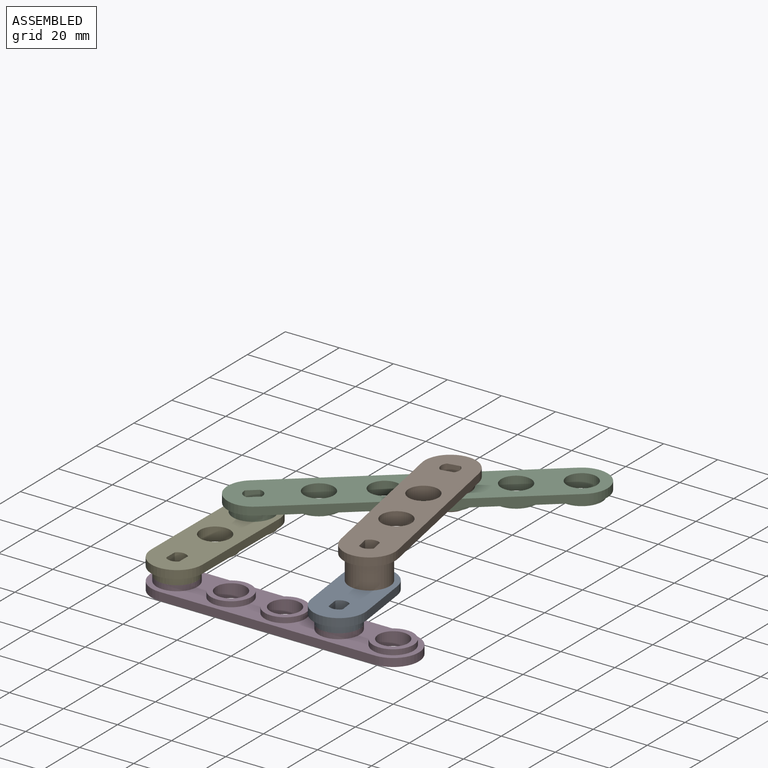
[diagram: assembled view]
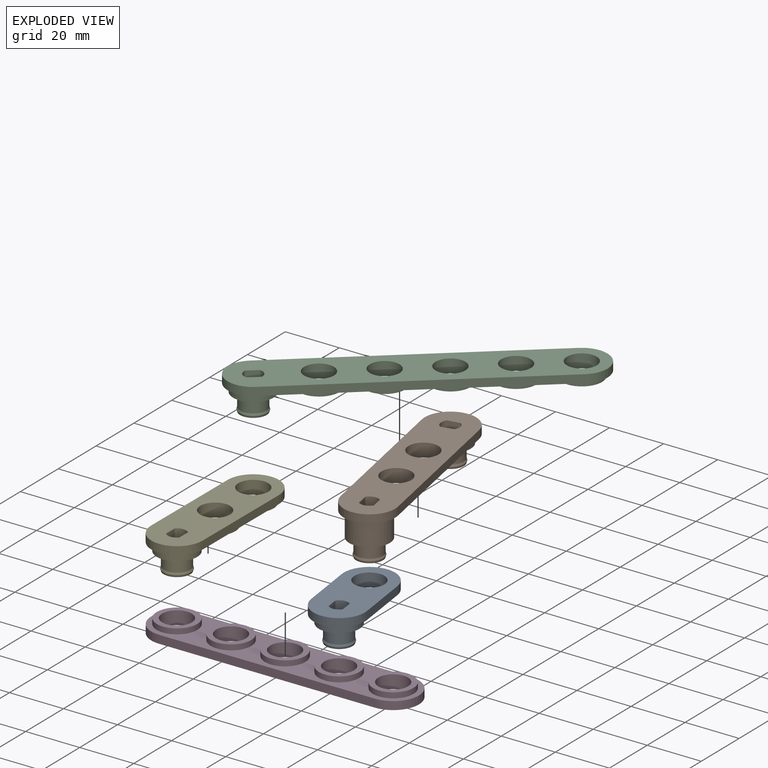
[diagram: exploded view]
GUIDED TOUR — MATED ASSEMBLY WITH SUBASSEMBLIES (Onshape document 5810d374413f1d10aa2dce65, AutoMate assembly 5810d374413f1d10aa2dce65_71eab3be1ad96f7b2e7ce7cf_451532e09a91fd1a0722f54e_default)

This assembly has 6 component occurrences arranged in 5 top-level units: 4 individual components plus 1 subassembly (S0). The tour has two levels: first the top level, where each subassembly is treated as one rigid unit; then each subassembly is toured internally in its own section (nesting deeper than one subassembly level is flattened into its subassembly's section).

Components are labeled P0..P5 across the whole record; subassembly units are labeled S0..S0. A mate is a constraint between two units; its type names the relative motion it leaves free:
  FASTENED — locks the two components together rigidly (no relative motion),
  REVOLUTE — leaves rotation about the listed axis free (a hinge).
Axis/direction vectors are unit vectors and 'through' points are millimeter coordinates, both in the assembly's world frame.

TOP-LEVEL MATES (between units; each subassembly's internal mates are listed in its own section)
  1. REVOLUTE "Revolute 4": P0 <-> S0, axis (0.000, 0.000, 1.000) through (57.34, 19.82, 11.00) mm
  2. REVOLUTE "Revolute 1 (axe moteur)": P3 <-> P4, axis (0.000, 0.000, 1.000) through (0.00, 0.00, 5.00) mm
  3. REVOLUTE "Revolute 5": S0 <-> P2, axis (0.000, 0.000, -1.000) through (46.03, 78.75, 17.00) mm
  4. REVOLUTE "Revolute 2": P4 <-> P2, axis (0.000, 0.000, 1.000) through (0.22, 40.00, 11.00) mm
  5. REVOLUTE "Revolute 3": P3 <-> P0, axis (0.000, 0.000, 1.000) through (60.00, 0.00, 5.00) mm

TOP-LEVEL ASSEMBLY ORDER
  1. P0 — the base component [order heuristic]
  2. S0 [order heuristic]
  3. P3 [order heuristic]
  4. P2 [order heuristic]
  5. P4 [order heuristic]
Order-tag legend:
  [order heuristic] — this assembly is geometrically interlocked (no collision-free removal order exists), so components are listed in mate-graph order; insertion feasibility is not verified.

Of the 6 component occurrences, 1 carries the full construction recipe — the FeatureScript program that regenerates the part's solid from scratch; the rest are supplied as boundary geometry only. Each toured unit is shown spotlighted twice — assembled, then exploded with a leader line back to its socket (green = recipe-attached component, orange = geometry-only, blue = subassembly unit; the rest desaturated gray).
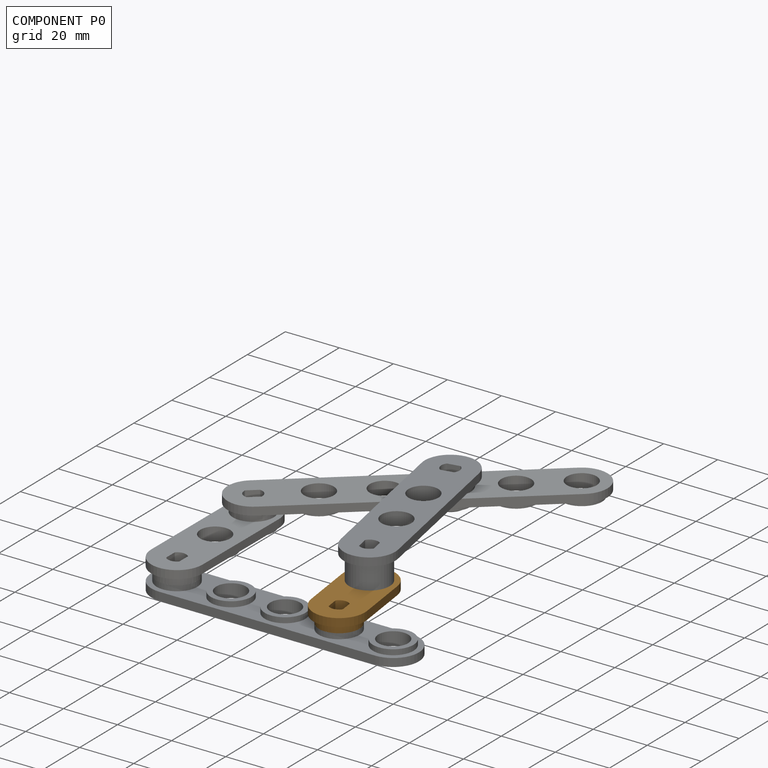
[diagram: component P0 — assembled]
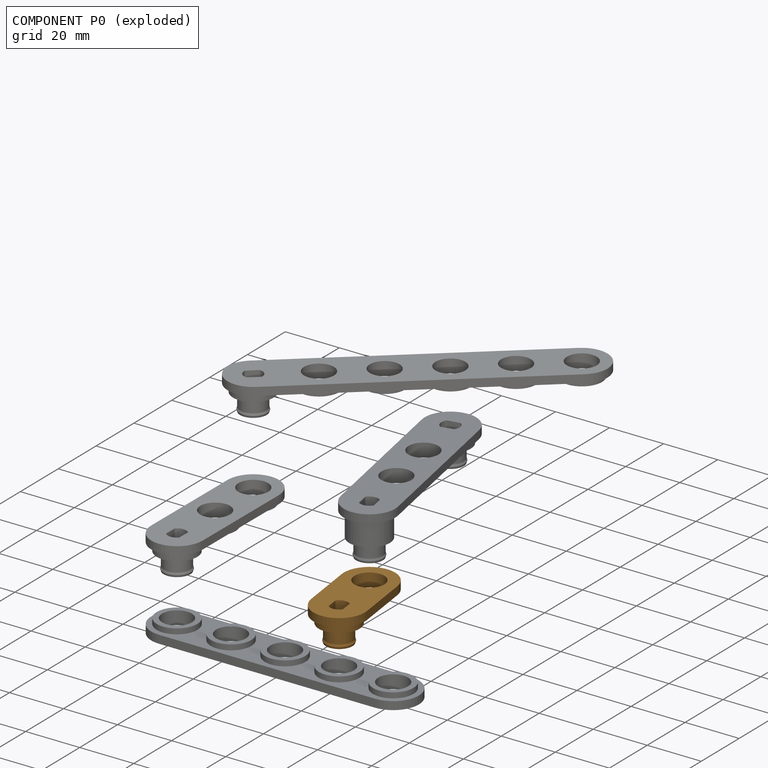
[diagram: component P0 — exploded]
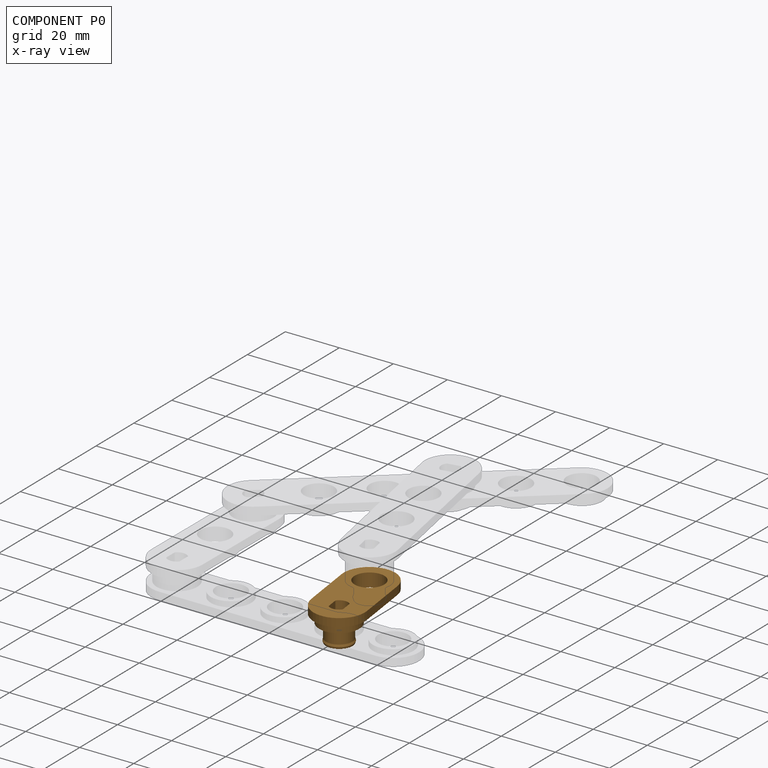
[diagram: component P0 — x-ray view]
COMPONENT P0 — geometry summary (no construction recipe available for this part):
  bounding box: 39.0 x 19.0 x 12.5 mm
  B-rep topology: 1 solid, 19 faces, 82 edges
  volume: 2525 mm^3 (27% of its bounding box)
  symmetry: mirror-symmetric across its y mid-plane
Held by: REVOLUTE mate "Revolute 4" to P1; REVOLUTE mate "Revolute 3" to P3.
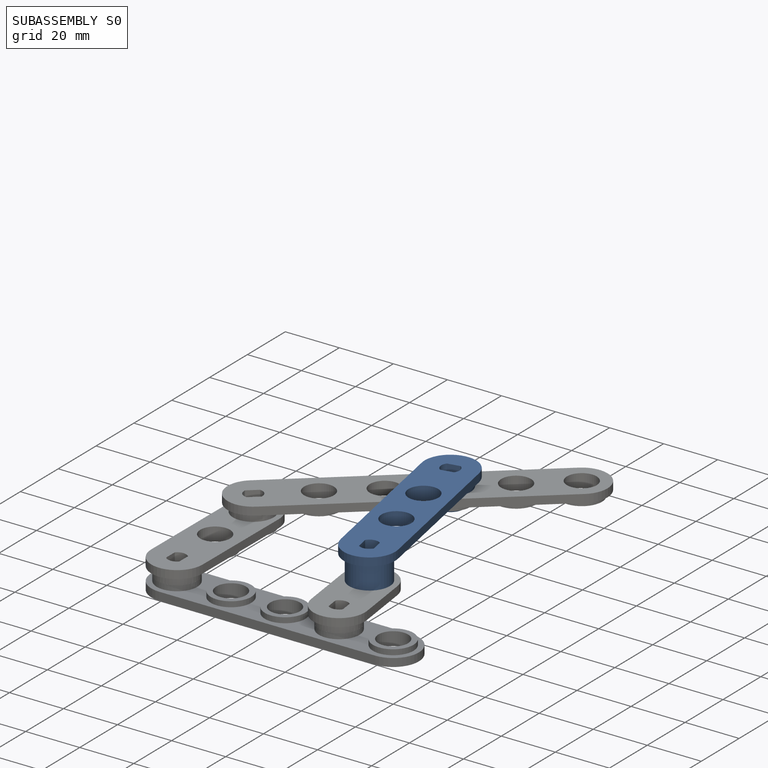
[diagram: subassembly S0 — assembled]
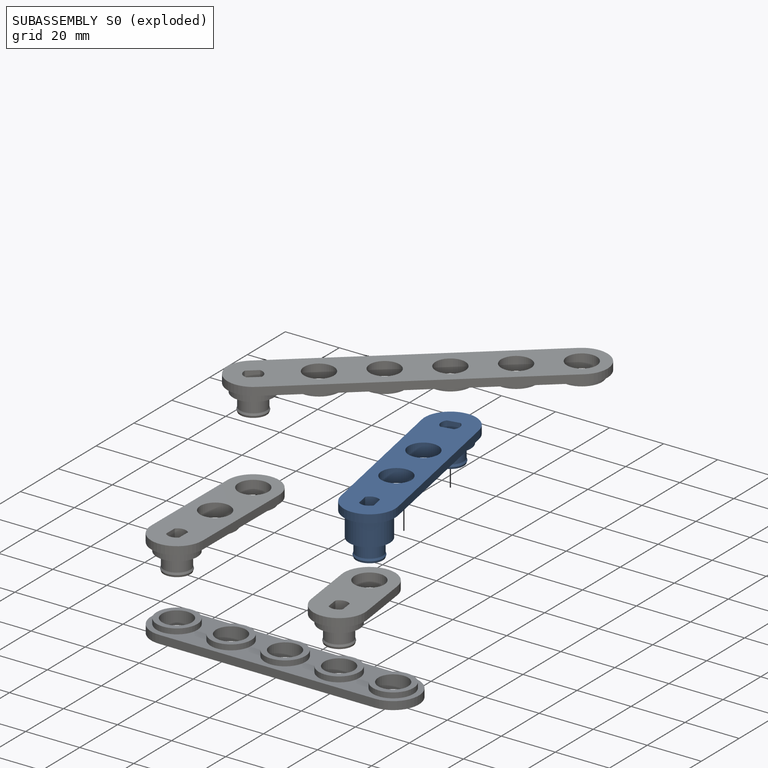
[diagram: subassembly S0 — exploded]
SUBASSEMBLY S0 — 2 components (P1, P5), of which 1 recipe-attached; toured below.
Held by: REVOLUTE mate "Revolute 4" to P0; REVOLUTE mate "Revolute 5" to P2.
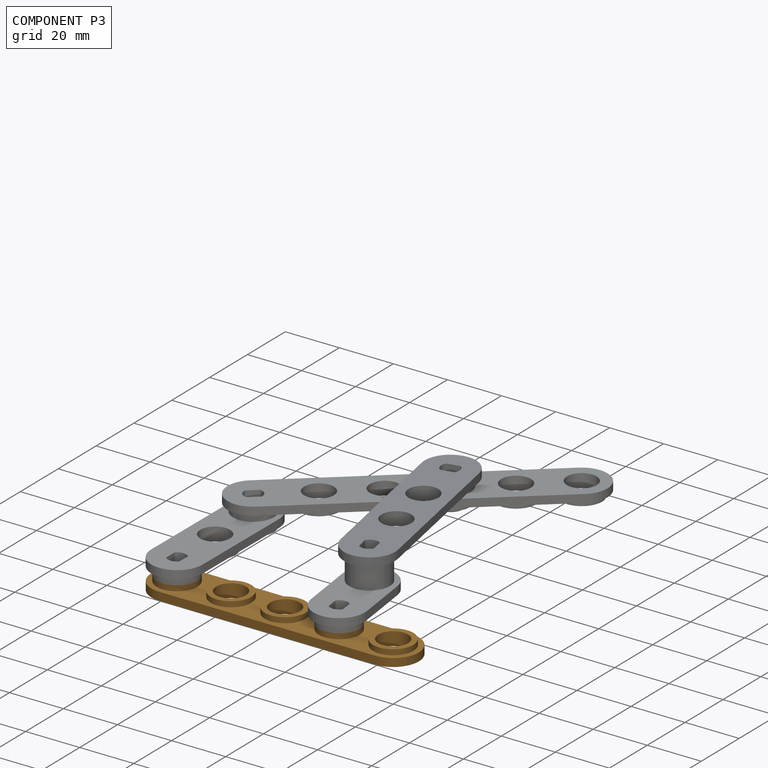
[diagram: component P3 — assembled]
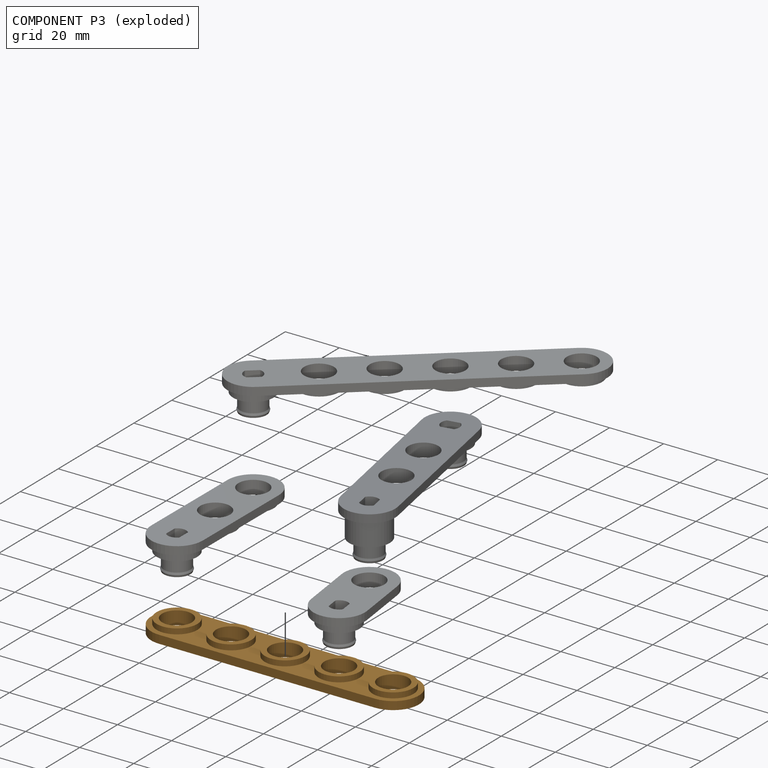
[diagram: component P3 — exploded]
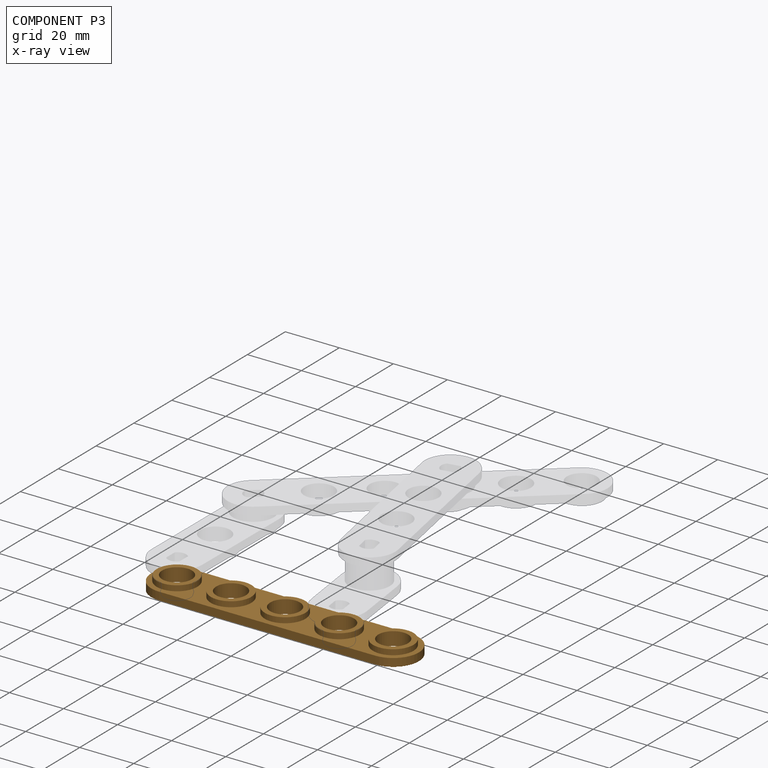
[diagram: component P3 — x-ray view]
COMPONENT P3 — geometry summary (no construction recipe available for this part):
  bounding box: 99.0 x 19.0 x 5.0 mm
  B-rep topology: 1 solid, 21 faces, 84 edges
  volume: 4802 mm^3 (51% of its bounding box)
  symmetry: 2-fold rotationally symmetric about the z axis; mirror-symmetric across its x mid-plane, y mid-plane
Held by: REVOLUTE mate "Revolute 1 (axe moteur)" to P4; REVOLUTE mate "Revolute 3" to P0.
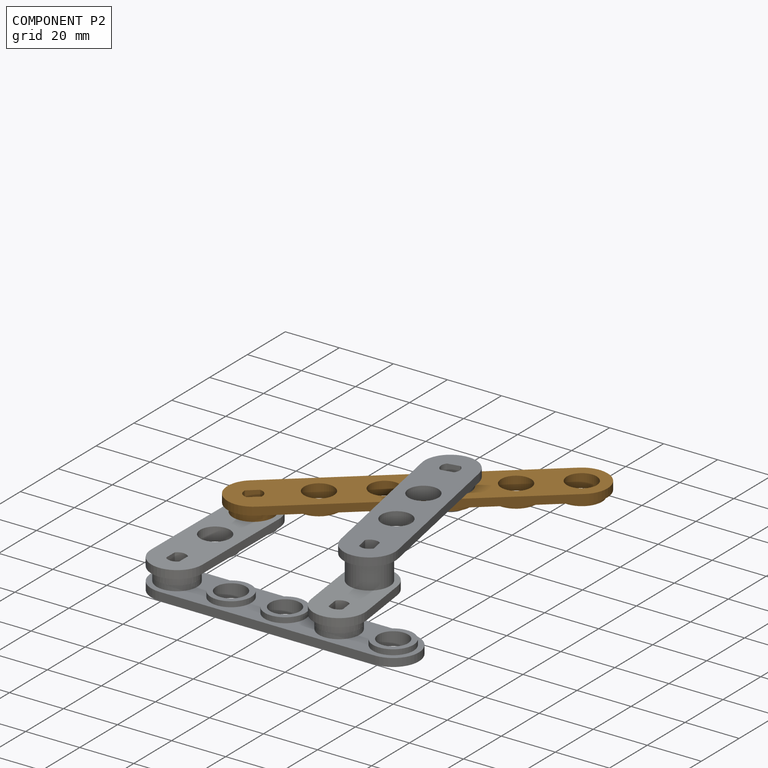
[diagram: component P2 — assembled]
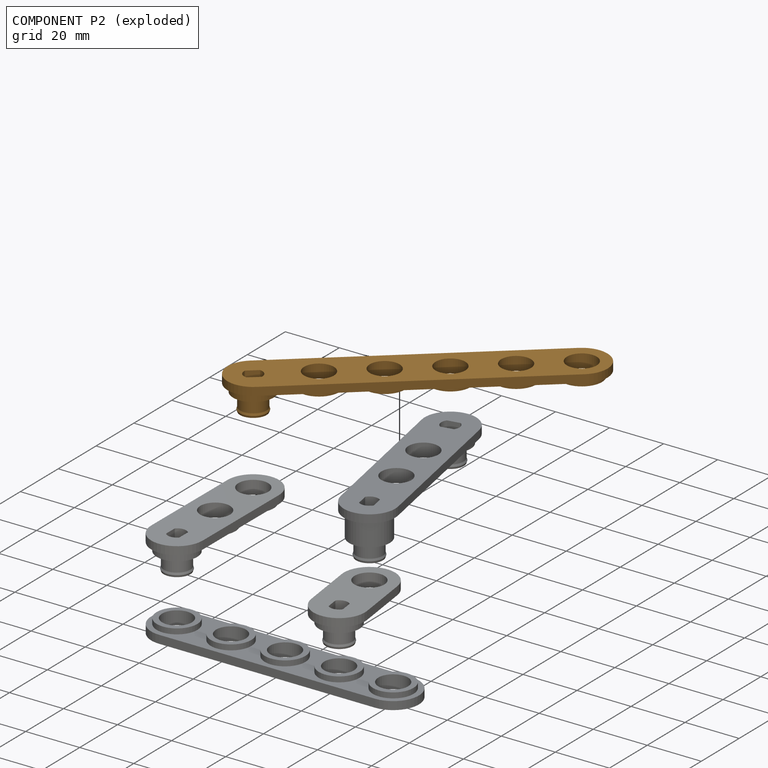
[diagram: component P2 — exploded]
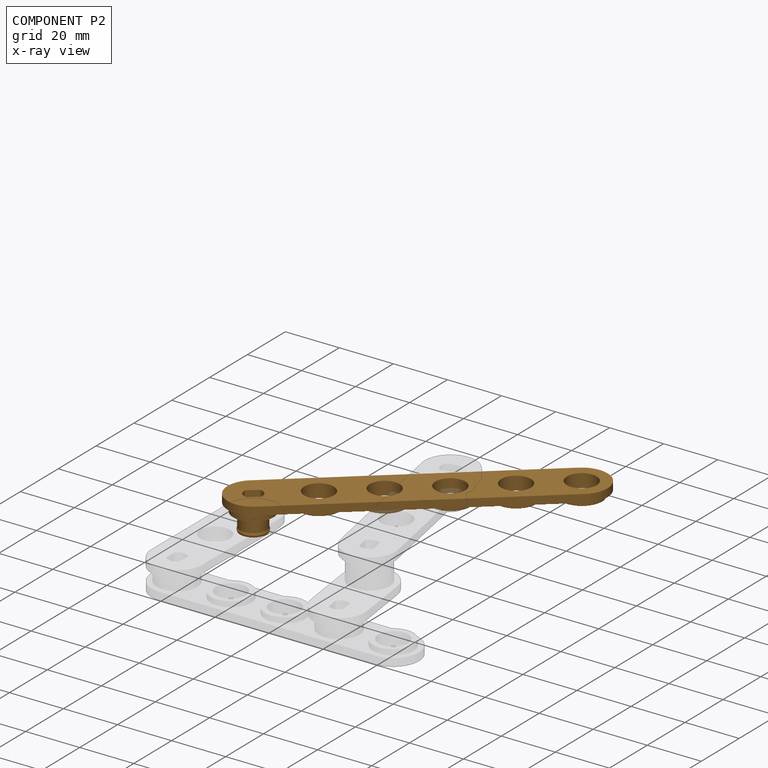
[diagram: component P2 — x-ray view]
COMPONENT P2 — geometry summary (no construction recipe available for this part):
  bounding box: 119.0 x 19.0 x 12.5 mm
  B-rep topology: 1 solid, 31 faces, 130 edges
  volume: 6598 mm^3 (23% of its bounding box)
  symmetry: mirror-symmetric across its y mid-plane
Held by: REVOLUTE mate "Revolute 5" to P1; REVOLUTE mate "Revolute 2" to P4.
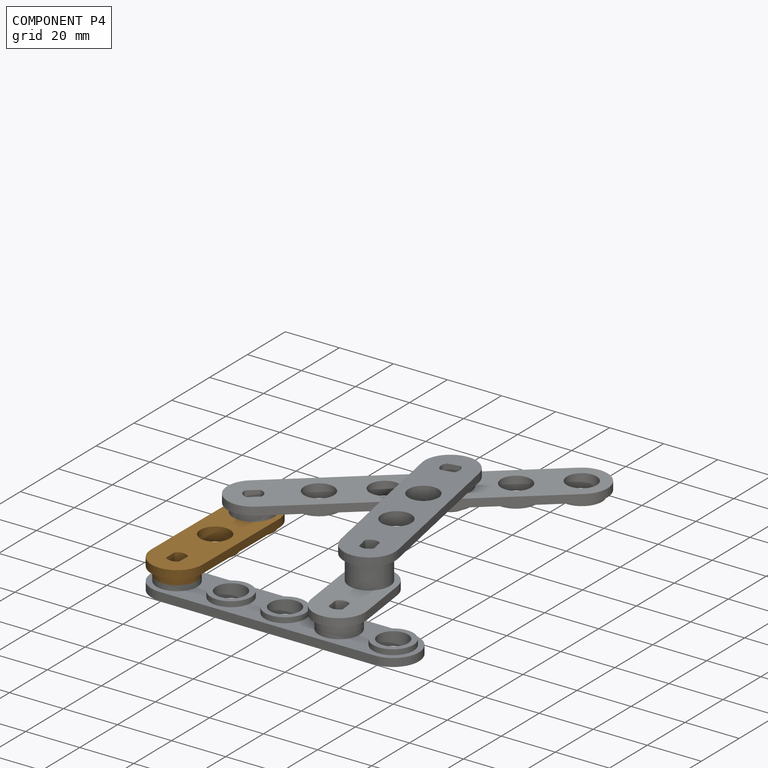
[diagram: component P4 — assembled]
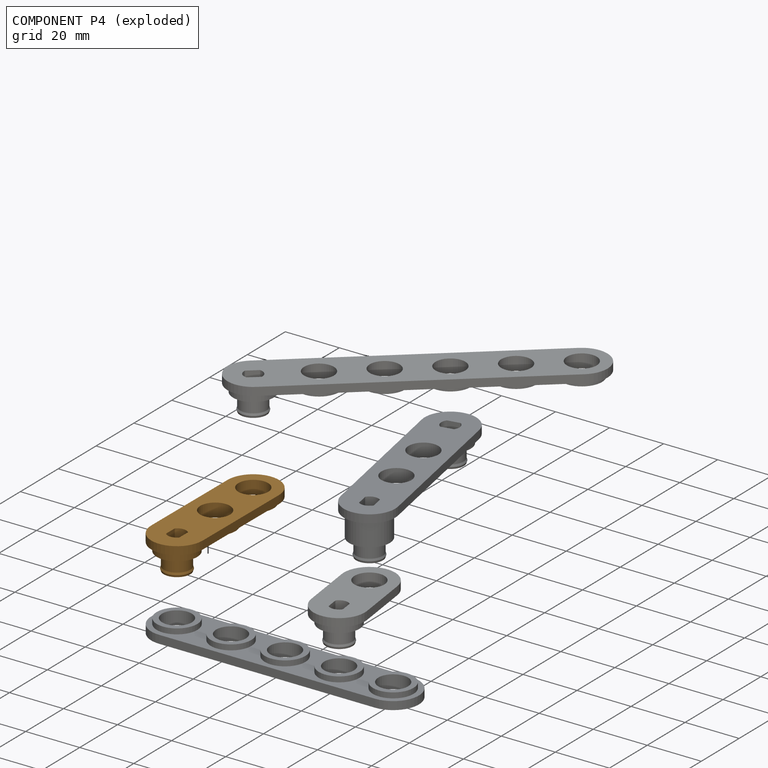
[diagram: component P4 — exploded]
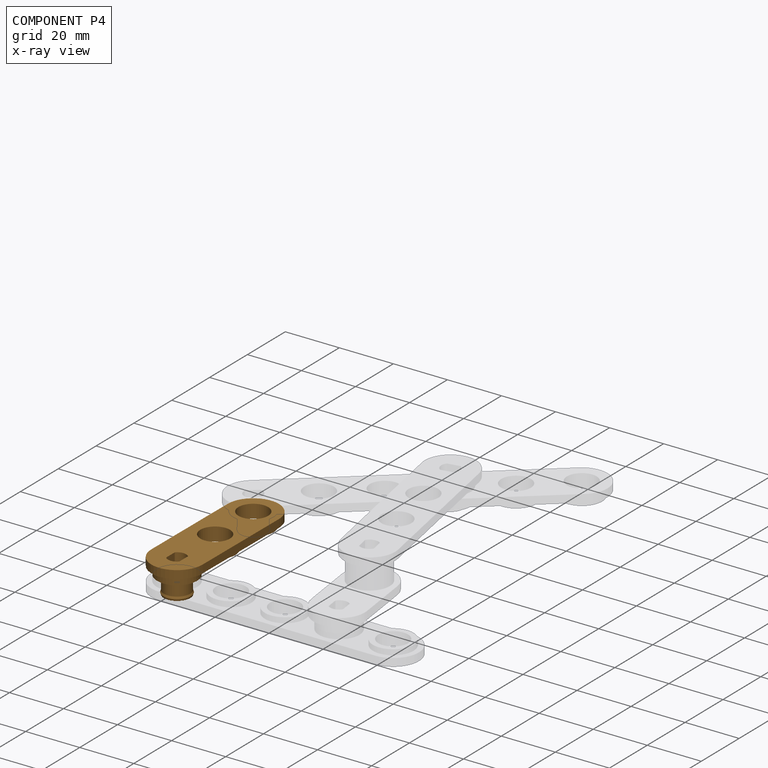
[diagram: component P4 — x-ray view]
COMPONENT P4 — geometry summary (no construction recipe available for this part):
  bounding box: 59.0 x 19.0 x 12.5 mm
  B-rep topology: 1 solid, 22 faces, 94 edges
  volume: 3543 mm^3 (25% of its bounding box)
  symmetry: mirror-symmetric across its y mid-plane
Held by: REVOLUTE mate "Revolute 1 (axe moteur)" to P3; REVOLUTE mate "Revolute 2" to P2.
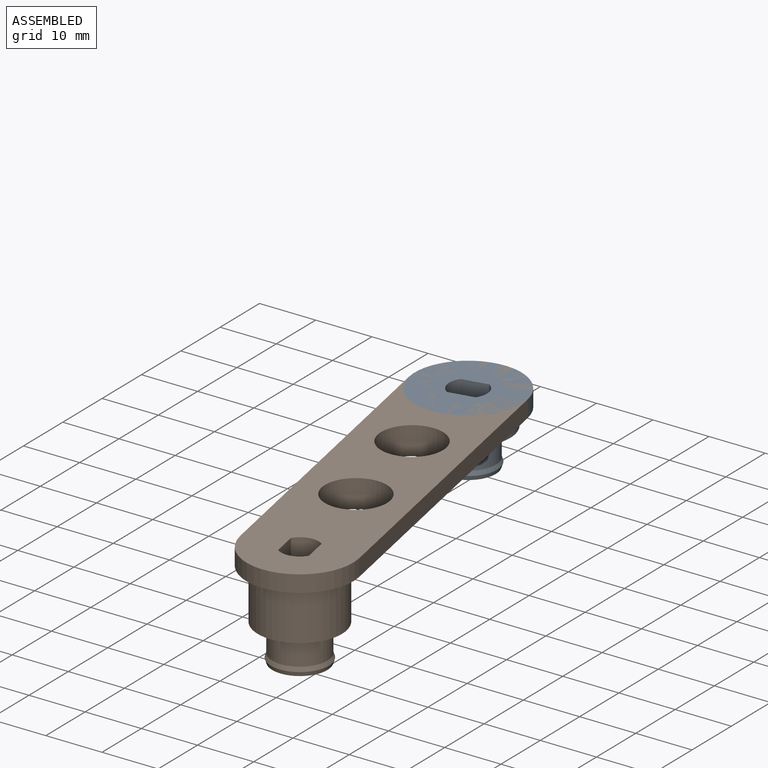
[diagram: subassembly S0 — assembled view]
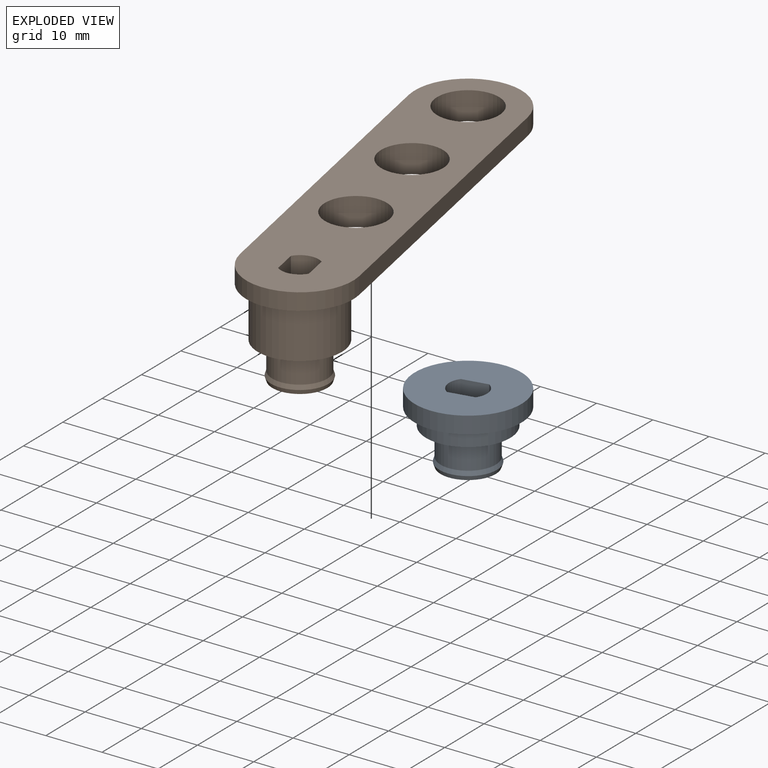
[diagram: subassembly S0 — exploded view]
SUBASSEMBLY S0 TOUR — 2 components, shown here in isolation at its own camera.

INTERNAL MATES
  1. FASTENED "Fastened 1": P5 <-> P1, direction (0.000, 0.000, 1.000) through (46.03, 78.75, 23.00) mm
  2. FASTENED "Fastened 1": P5 <-> P1, direction (0.000, 0.000, 1.000) through (46.03, 78.75, 23.00) mm

ASSEMBLY ORDER (within the subassembly)
  1. P1 — the base component [order heuristic]
  2. P5 [order heuristic]
Order-tag legend:
  [order heuristic] — this assembly is geometrically interlocked (no collision-free removal order exists), so components are listed in mate-graph order; insertion feasibility is not verified.
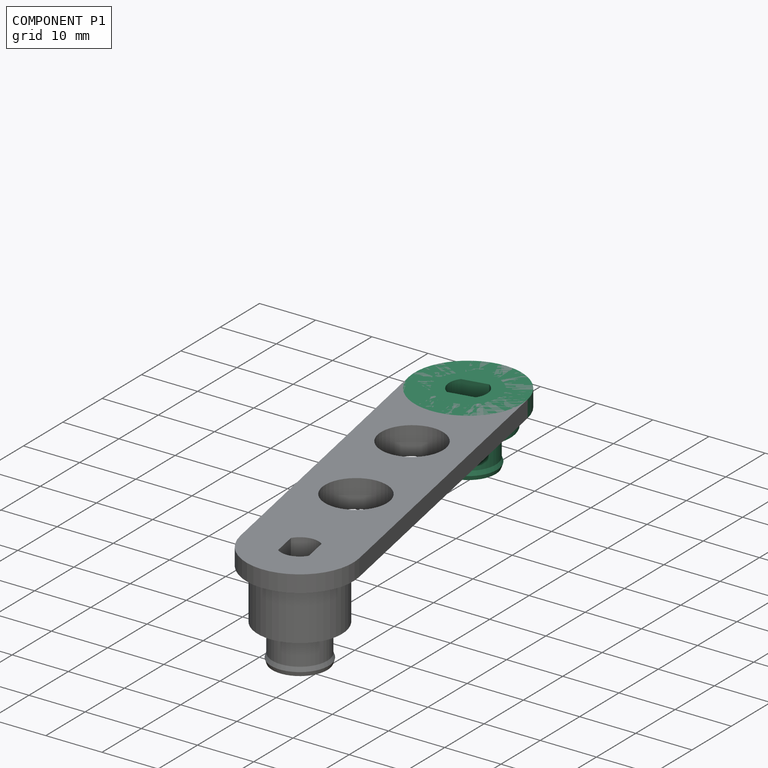
[diagram: component P1 — assembled]
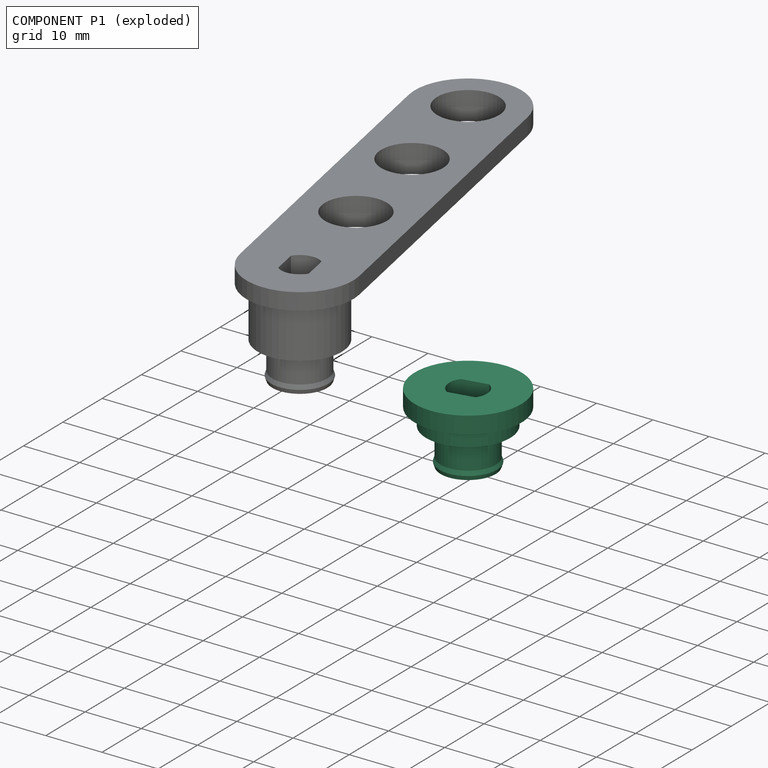
[diagram: component P1 — exploded]
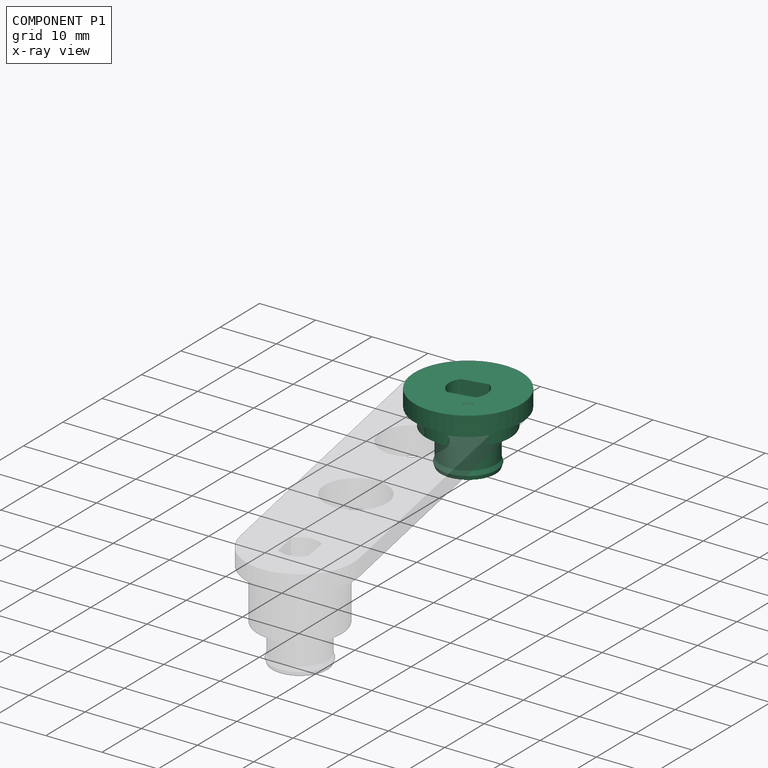
[diagram: component P1 — x-ray view]
COMPONENT P1 — recipe-attached (CADFS 00326685, mesh-verified: the recipe's output STEP matches this component's geometry to below the mesh-comparison resolution (tessellation chordal tolerance ~0.0444 mm)).
Held by: FASTENED mate "Fastened 1" to P5; FASTENED mate "Fastened 1" to P5.
Construction recipe (FeatureScript — the CAD program that rebuilds this solid; sketch coordinates are in the units given by the * unit suffixes, e.g. mm):

FeatureScript 1549;
import(path : "onshape/std/geometry.fs", version : "1549.0");
import(path : "onshape/std/common.fs", version : "1549.0");
const mm = millimeter;
const VERTEX = EntityType.VERTEX;
const EDGE = EntityType.EDGE;
const FACE = EntityType.FACE;
const BODY = EntityType.BODY;
function v(x, y){return vector(x, y);}
function OD(order){return orderDisambiguation(order);}
function OSD(set){return originalSetDisambiguation(set);}
function TD(topology){return topologyDisambiguation(topology);}
function TDD(query){return trueDependencyDisambiguation(query);}
function sQuery(a, b, c) {return sketchEntityQuery(a, b, c);}

annotation { "Feature Type Name" : "Feature", "Feature Type Description" : "" }
export const myFeature = defineFeature(function(context is Context, id is Id, definition is map)
    precondition{}
    {
        {
            assignVariable(context, id + "F0", {"name" : "e", "anyValue" : 3});
        }
        {
            assignVariable(context, id + "F1", {"name" : "h1", "anyValue" : 3});
        }
        {
            assignVariable(context, id + "F2", {"name" : "h2", "anyValue" : 6.5});
        }
        {
            var Q0;
            Q0=qCreatedBy(makeId("Top.planeOp"),FACE);
            var sketch = newSketch(context, id + "F3", { "sketchPlane" : qUnion([Q0])});
            skCircle(sketch, "E0", {"center": v(0, 0) * mm, "radius": 9.5 * mm});
            skCircle(sketch, "E1", {"center": v(0, 0) * mm, "radius": 7.5 * mm});
            skCircle(sketch, "E2", {"center": v(0, 0) * mm, "radius": 4.9 * mm});
            skArc(sketch, "E3", {"start": v(-2.28, 2.45) * mm, "mid": v(-3.35, 0) * mm, "end": v(-2.28, -2.45) * mm});
            skLineSegment(sketch, "E4.bottom", {"start": v(2.28, -2.45) * mm, "end": v(-2.28, -2.45) * mm});
            skLineSegment(sketch, "E4.top", {"start": v(2.28, 2.45) * mm, "end": v(-2.28, 2.45) * mm});
            skArc(sketch, "E5.trimOffspring", {"start": v(2.28, -2.45) * mm, "mid": v(3.35, 0) * mm, "end": v(2.28, 2.45) * mm});
            skPoint(sketch, "E6.orphan", {"position": v(3.35, 2.45) * mm});
            skPoint(sketch, "E7.orphan", {"position": v(3.35, -2.45) * mm});
            skPoint(sketch, "E8.orphan", {"position": v(-3.35, -2.45) * mm});
            skPoint(sketch, "E9.orphan", {"position": v(-3.35, 2.45) * mm});
            skSolve(sketch);
        }
        {
            var Q0;
            Q0=makeQuery(id+"F3.imprint","IMPRINT",FACE,{"disambiguationData":[TD([[makeQuery(id+"F3.imprint","IMPRINT",EDGE,{"derivedFrom":sQuery(id+"F3.wireOp",EDGE,"E0")}),1.0]])]});
            var Q1;
            Q1=makeQuery(id+"F3.imprint","IMPRINT",FACE,{"disambiguationData":[TD([[makeQuery(id+"F3.imprint","IMPRINT",EDGE,{"derivedFrom":sQuery(id+"F3.wireOp",EDGE,"E1")}),1.0]])]});
            var Q2;
            Q2=makeQuery(id+"F3.imprint","IMPRINT",FACE,{"disambiguationData":[TD([[makeQuery(id+"F3.imprint","IMPRINT",EDGE,{"derivedFrom":sQuery(id+"F3.wireOp",EDGE,"E2")}),1.0]])]});
            extrude(context, id + "F4", {"entities" : qUnion([Q0, Q1, Q2]), "depth" : (getVariable(context, 'e')) * mm});
        }
        {
            var Q0;
            Q0=makeQuery(id+"F3.imprint","IMPRINT",FACE,{"disambiguationData":[TD([[makeQuery(id+"F3.imprint","IMPRINT",EDGE,{"derivedFrom":sQuery(id+"F3.wireOp",EDGE,"E1")}),1.0]])]});
            var Q1;
            Q1=makeQuery(id+"F3.imprint","IMPRINT",FACE,{"disambiguationData":[TD([[makeQuery(id+"F3.imprint","IMPRINT",EDGE,{"derivedFrom":sQuery(id+"F3.wireOp",EDGE,"E2")}),1.0]])]});
            extrude(context, id + "F5", {"entities" : qUnion([Q0, Q1]), "operationType" : NewBodyOperationType.ADD, "depth" : (getVariable(context, 'e') + getVariable(context, 'h1')) * mm});
        }
        {
            var Q0;
            Q0=makeQuery(id+"F3.imprint","IMPRINT",FACE,{"disambiguationData":[TD([[makeQuery(id+"F3.imprint","IMPRINT",EDGE,{"derivedFrom":sQuery(id+"F3.wireOp",EDGE,"E2")}),1.0]])]});
            extrude(context, id + "F6", {"entities" : qUnion([Q0]), "operationType" : NewBodyOperationType.ADD, "depth" : (getVariable(context, 'e') + getVariable(context, 'h1') + getVariable(context, 'h2')) * mm});
        }
        {
            var Q0;
            Q0=qCreatedBy(makeId("Front.planeOp"),FACE);
            var sketch = newSketch(context, id + "F7", { "sketchPlane" : qUnion([Q0])});
            skLineSegment(sketch, "E10", {"start": v(0, 0) * mm, "end": v(0, 17.5) * mm, "construction": true});
            skLineSegment(sketch, "E11", {"start": v(-4.9, 6) * mm, "end": v(-4.9, 12.5) * mm});
            skLineSegment(sketch, "E12", {"start": v(4.9, 12.5) * mm, "end": v(4.9, 6) * mm});
            skLineSegment(sketch, "E13.bottom", {"start": v(4.9, 12.5) * mm, "end": v(5.15, 12.5) * mm, "construction": true});
            skLineSegment(sketch, "E13.top", {"start": v(4.9, 11) * mm, "end": v(5.15, 11) * mm, "construction": true});
            skLineSegment(sketch, "E13.left", {"start": v(4.9, 12.5) * mm, "end": v(4.9, 11) * mm, "construction": true});
            skLineSegment(sketch, "E13.right", {"start": v(5.15, 12.5) * mm, "end": v(5.15, 11) * mm, "construction": true});
            skPoint(sketch, "E14", {"position": v(5.15, 11.75) * mm});
            skLineSegment(sketch, "E15", {"start": v(4.9, 12.5) * mm, "end": v(5.15, 11.75) * mm});
            skLineSegment(sketch, "E16", {"start": v(5.15, 11.75) * mm, "end": v(4.9, 11) * mm});
            skLineSegment(sketch, "E17", {"start": v(4.9, 11) * mm, "end": v(4.9, 12.5) * mm});
            skSolve(sketch);
        }
        {
            var Q0;
            Q0=makeQuery(id+"F7.imprint","IMPRINT",FACE,{"disambiguationData":[TD([[makeQuery(id+"F7.imprint","IMPRINT",EDGE,{"derivedFrom":sQuery(id+"F7.wireOp",EDGE,"E15")}),-1.0]])]});
            var Q1;
            Q1=sQuery(id+"F7.wireOp",EDGE,"E10");
            revolve(context, id + "F8", {"operationType" : NewBodyOperationType.ADD, "entities" : qUnion([Q0]), "axis" : qUnion([Q1]), "revolveType" : RevolveType.FULL});
        }
        {
            var Q0;
            Q0=makeQuery(id+"F6.opExtrude","CAP_FACE",FACE,{"disambiguationData":[OSD([sQuery(id+"F3.wireOp",EDGE,"E2"),sQuery(id+"F3.wireOp",EDGE,"E3"),sQuery(id+"F3.wireOp",EDGE,"E4.bottom"),sQuery(id+"F3.wireOp",EDGE,"E4.top"),sQuery(id+"F3.wireOp",EDGE,"E5.trimOffspring")])],"isStart":false});
            cPlane(context, id + "F9", {"entities" : qUnion([Q0]), "cplaneType" : CPlaneType.OFFSET, "offset" : 0 * mm, "width" : 150 * mm, "height" : 150 * mm});
        }
    });
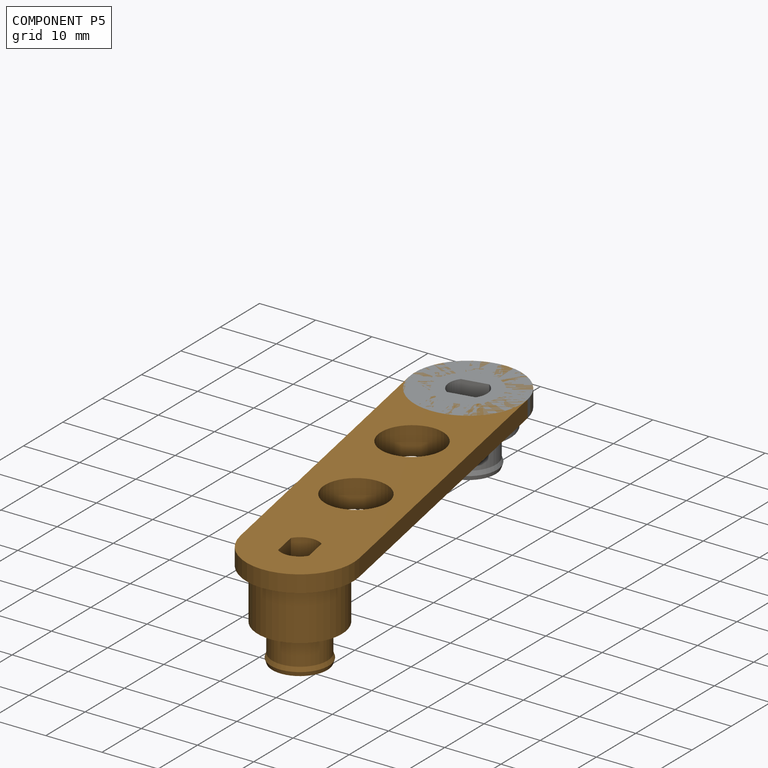
[diagram: component P5 — assembled]
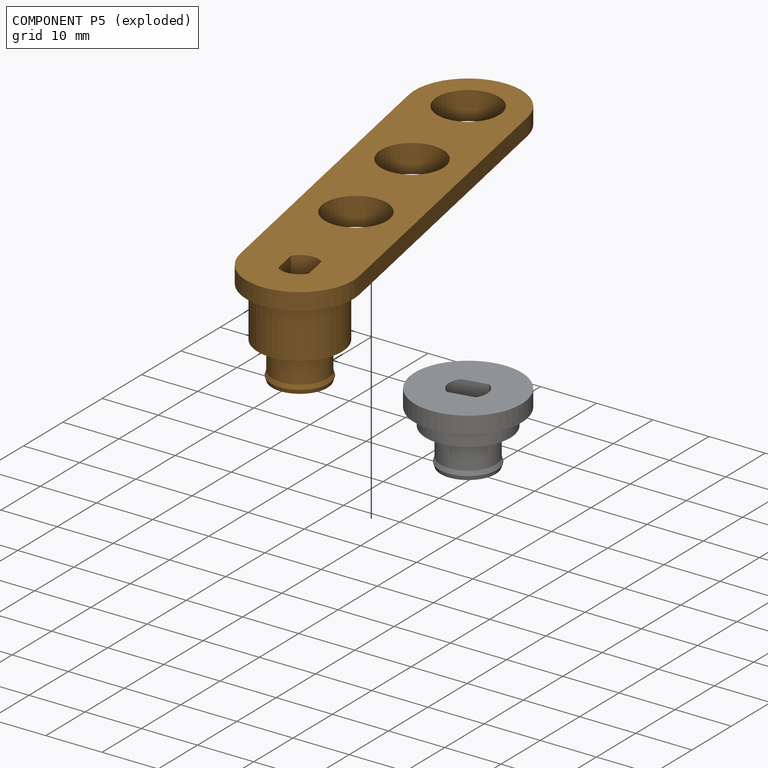
[diagram: component P5 — exploded]
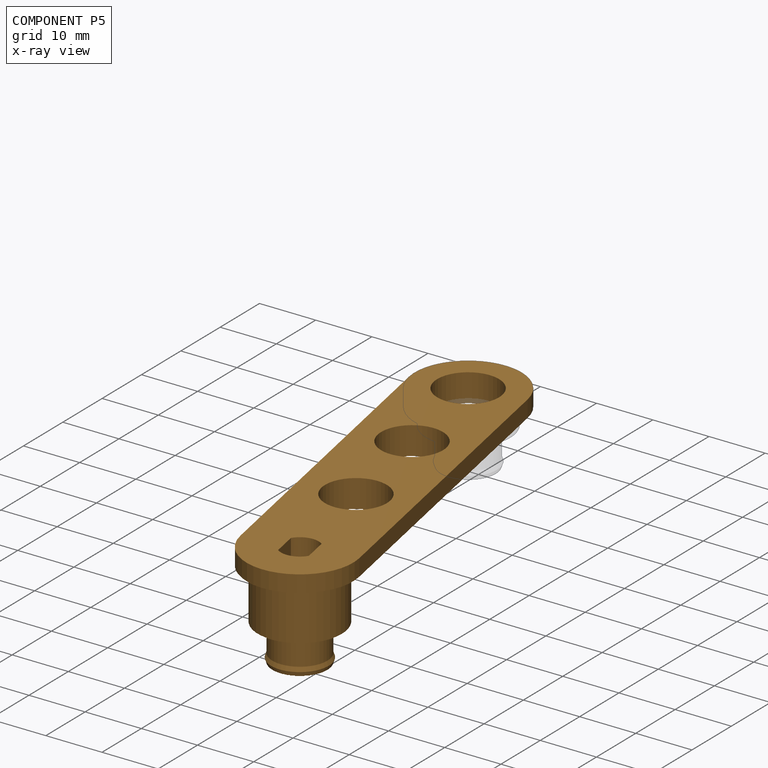
[diagram: component P5 — x-ray view]
COMPONENT P5 — geometry summary (no construction recipe available for this part):
  bounding box: 79.0 x 19.0 x 18.5 mm
  B-rep topology: 1 solid, 25 faces, 106 edges
  volume: 5444 mm^3 (20% of its bounding box)
  symmetry: mirror-symmetric across its y mid-plane
Held by: FASTENED mate "Fastened 1" to P1; FASTENED mate "Fastened 1" to P1.
PROVENANCE & LICENSES
Assembly (occurrences, transforms, mates, per-part STEP geometry): AutoMate dataset, Zenodo record 7776208, CC0.
Construction recipes: CADFS (HuggingFace VladPyatov/CADFS, CC-BY-4.0, layered over the ABC dataset), FeatureScript reconstruction programs keyed by ABC model id.
Join: ABC meta listings map ABC model id -> Onshape documentId; within a shared document, parts are matched by geometric signature (bounding-box dims + volume at 0.1% relative tolerance, exact B-rep face/solid counts).
Verification: 1 of this assembly's 6 components carries a recipe attachment, and every attachment is mesh-verified: the CADFS STEP and the AutoMate member STEP were compared as meshes in their shared local frame (symmetric sampled-point-to-mesh distance); worst across the 1 attachment: below the mesh-comparison resolution (tessellation chordal tolerance ~0.0444 mm) on a 30 mm part.
Renders: orthographic iso camera (az 35 / el 25); the floor grid conveys scale (grid pitch printed in each image; no ruler). In the exploded view each component is displaced by its stored offset vector: the offsets alone carry the explosion direction (mate normal/axis signs are not orientation cues and do not encode it), and separation distances are assigned per mate-chain, not proportionally to assembly-order depth.
